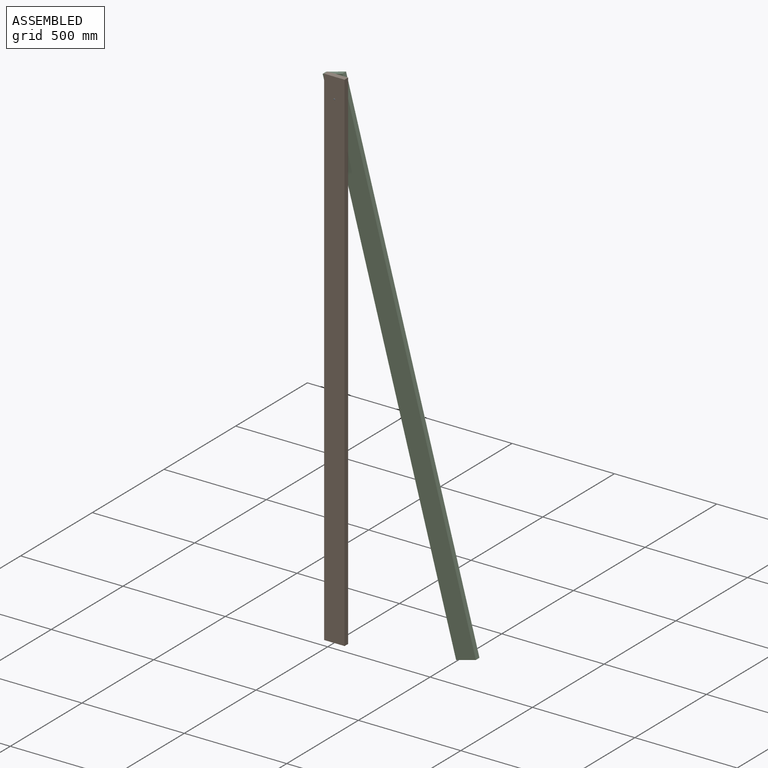
[diagram: assembled view]
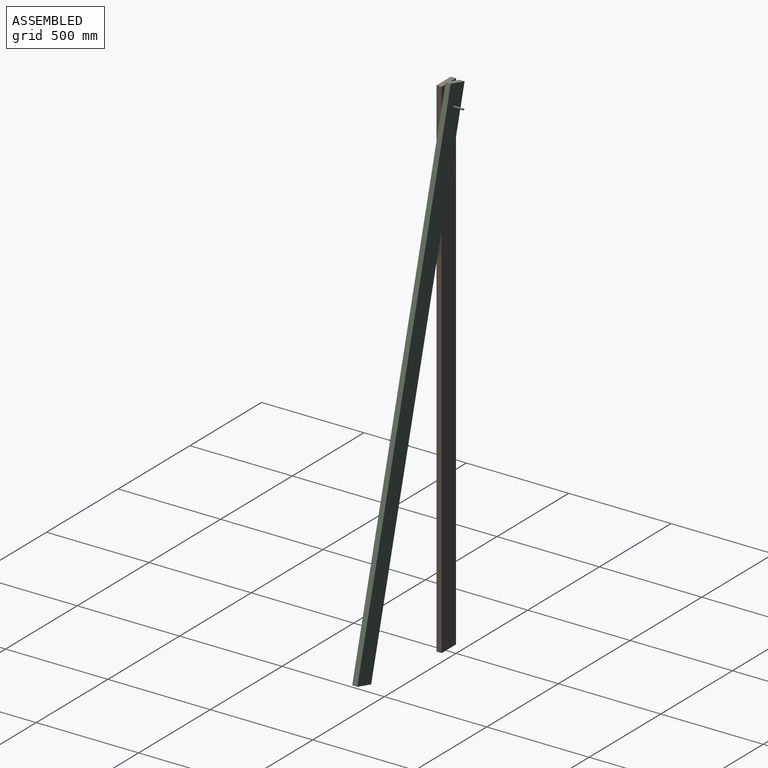
[diagram: assembled view, second angle]
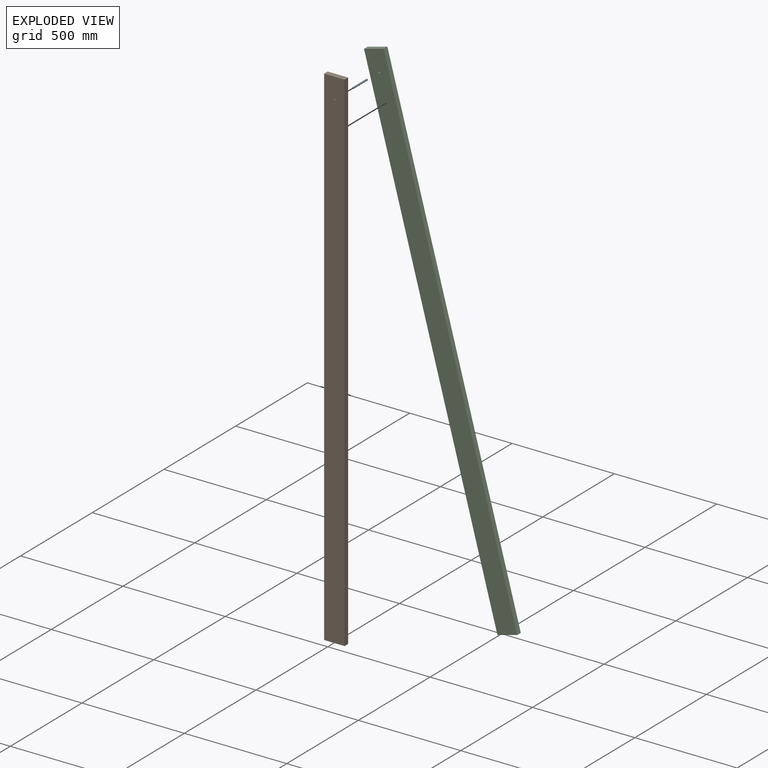
[diagram: exploded view]
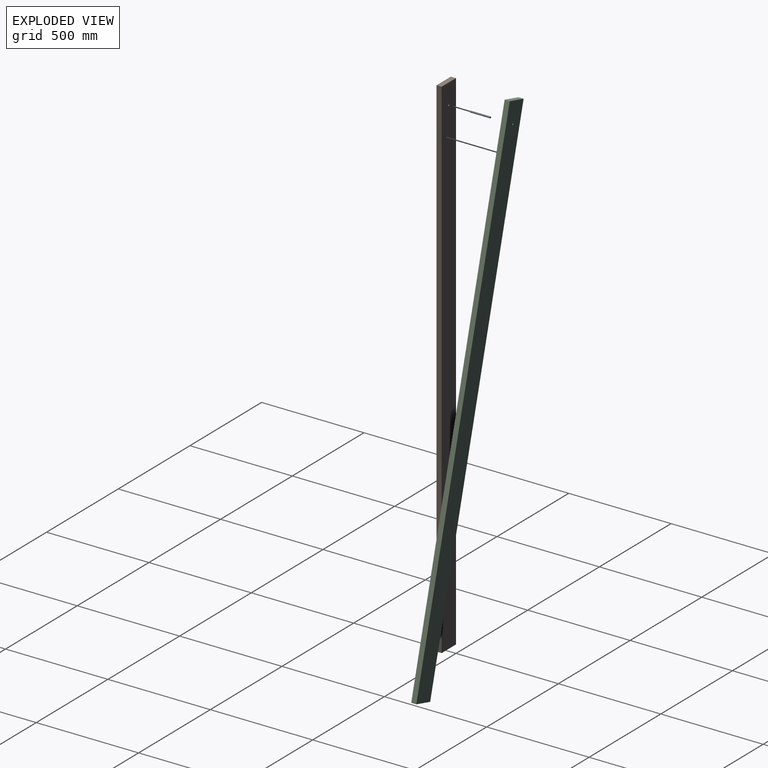
[diagram: exploded view, second angle]
FCSTD DOCUMENT  (FreeCAD 1.0R39109 (Git))
Label: шагающие леса
License: All rights reserved
objects: App::Link×3, App::FeaturePython×3, Sketcher::SketchObject×1, PartDesign::Pad×1, PartDesign::Body×1, Part::FeaturePython×1, Assembly::JointGroup×1, Assembly::AssemblyObject×1
note: 7 computed .brp shape members not serialized (recipe doc carries the construction recipe); baked Part::Feature solids carry a one-line shape summary decoded from their .brp

FEATURE [Sketcher::SketchObject] Sketch
  ArcFitTolerance = 1e-06
  AttachmentSupport = -> [XZ_Plane]
  FullyConstrained = true
  MakeInternals = false
  MapMode = 5
  Placement = pos=(0,0,0) rot=(1,0,0;1.5708rad)
  sketch-geometry (5):
    g0: LineSegment StartX=0 StartY=2500 StartZ=0 EndX=0 EndY=0 EndZ=0
    g1: LineSegment StartX=0 StartY=0 StartZ=0 EndX=100 EndY=0 EndZ=0
    g2: LineSegment StartX=100 StartY=0 StartZ=0 EndX=100 EndY=2500 EndZ=0
    g3: LineSegment StartX=100 StartY=2500 StartZ=0 EndX=0 EndY=2500 EndZ=0
    g4: Circle CenterX=50 CenterY=2400 CenterZ=0 NormalX=0 NormalY=0 NormalZ=1 AngleXU=0 Radius=4
  constraints (14):
    c: Coincident(g0,g1)
    c: Coincident(g1,g2)
    c: Coincident(g2,g3)
    c: Coincident(g3,g0)
    c: Vertical(g0)
    c: Vertical(g2)
    c: Horizontal(g1)
    c: Horizontal(g3)
    c: Distance(g0,g2) = 100
    c: Distance(g1,g3) = 2500
    c: Coincident(g-1,g0)
    c: Diameter(g4) = 8
    c: Distance(g4,g3) = 100
    c: Distance(g4,g0) = 50
FEATURE [PartDesign::Pad] Pad
  Direction = (0,-1,2e-16)
  Length = 25
  Length2 = 10
  Placement = pos=(0,0,0) rot=(1,0,0;1.5708rad)
  Profile = -> Sketch
  ReferenceAxis = -> Sketch [N_Axis]
  Refine = true
  Suppressed = false
  Type = 0
FEATURE [PartDesign::Body] Body  label="Тело"
  AllowCompound = false
  Group = -> [Sketch,Pad]
  Origin = -> Origin
  Tip = -> Pad
FEATURE [App::Link] ________  label="Тело001"
  LinkedObject = -> Body
FEATURE [App::FeaturePython] GroundedJoint  # Assembly grounded joint (typed FeaturePython)
  ObjectToGround = -> ________
FEATURE [App::Link] ________001  label="Тело002"
  LinkPlacement = pos=(627.335,25,69.9391) rot=(0,-1,0;0.263716rad)
  LinkedObject = -> Body
  Placement = pos=(627.335,25,69.9391) rot=(0,-1,0;0.263716rad)
FEATURE [App::FeaturePython] Joint  label="Revolute"  # Assembly joint (typed FeaturePython)
  Activated = true
  AngleMax = 0
  AngleMin = 0
  Detach1 = false
  Detach2 = false
  Distance = 0
  Distance2 = 0
  EnableAngleMax = false
  EnableAngleMin = false
  EnableLengthMax = false
  EnableLengthMin = false
  JointType = 1 (Revolute)
  LengthMax = 0
  LengthMin = 0
  Placement1 = pos=(50,-5.329e-13,2400) rot=(1,0,0;1.5708rad)
  Placement2 = pos=(50,-25,2400) rot=(1,0,0;1.5708rad)
  Reference1 = -> Assembly [________.Edge14,________.Edge14]
  Reference2 = -> Assembly [________001.Edge15,________001.Edge15]
FEATURE [Part::FeaturePython] ThreadedRod  label="M8x100-Шпилька"  # WARN: FeaturePython — macro-defined, semantics opaque (R4)
  Diameter = 9
  DiameterCustom = 6
  Invert = false
  LeftHanded = false
  Length = 100
  MatchOuter = false
  OffsetAngle = 0
  PitchCustom = 1
  Thread = false
  Type = 4
FEATURE [App::Link] M8x100_______________  label="M8x100-Шпилька001"
  LinkPlacement = pos=(50,73.75,2400) rot=(-1,0,0;1.5708rad)
  LinkedObject = -> ThreadedRod
  Placement = pos=(50,73.75,2400) rot=(-1,0,0;1.5708rad)
FEATURE [App::FeaturePython] Joint001  label="Вращение"  # Assembly joint (typed FeaturePython)
  Activated = true
  AngleMax = 0
  AngleMin = 0
  Detach1 = false
  Detach2 = false
  Distance = 0
  Distance2 = 0
  EnableAngleMax = false
  EnableAngleMin = false
  EnableLengthMax = false
  EnableLengthMin = false
  JointType = 1 (Revolute)
  LengthMax = 0
  LengthMin = 0
  Placement1 = pos=(50,-25,2400) rot=(1,0,0;1.5708rad)
  Placement2 = pos=(0,0,-98.75) rot=(0,0,1;0rad)
  Reference1 = -> Assembly [________.Edge15,________.Edge15]
  Reference2 = -> Assembly [M8x100_______________.Edge4,M8x100_______________.Edge4]
FEATURE [Assembly::JointGroup] Joints
  Group = -> [GroundedJoint,Joint,Joint001]
FEATURE [Assembly::AssemblyObject] Assembly
  Group = -> [Joints,________,GroundedJoint,________001,Joint,M8x100_______________,Joint001]
  Origin = -> Origin001
  Type = Assembly
